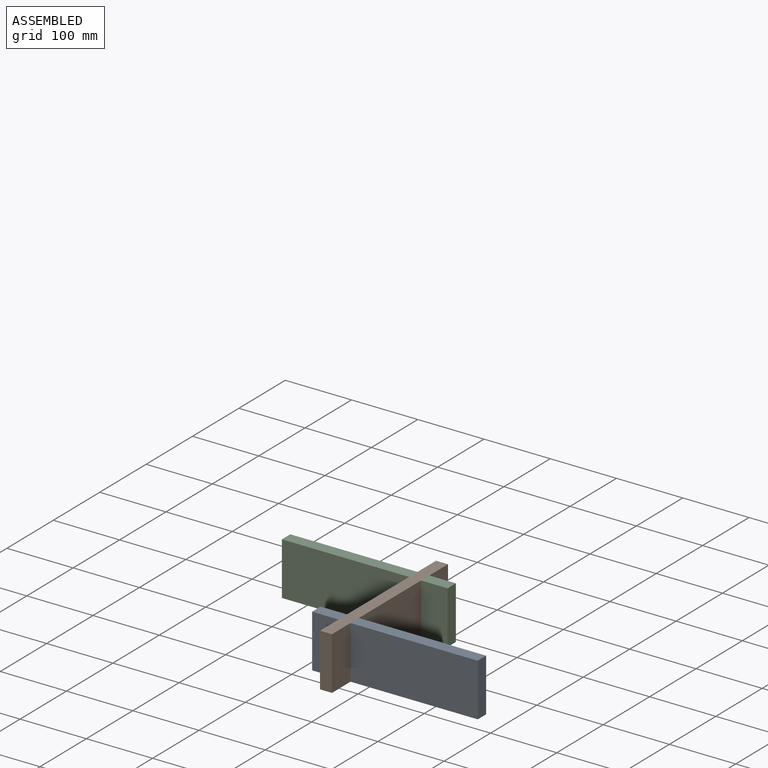
[diagram: assembled view]
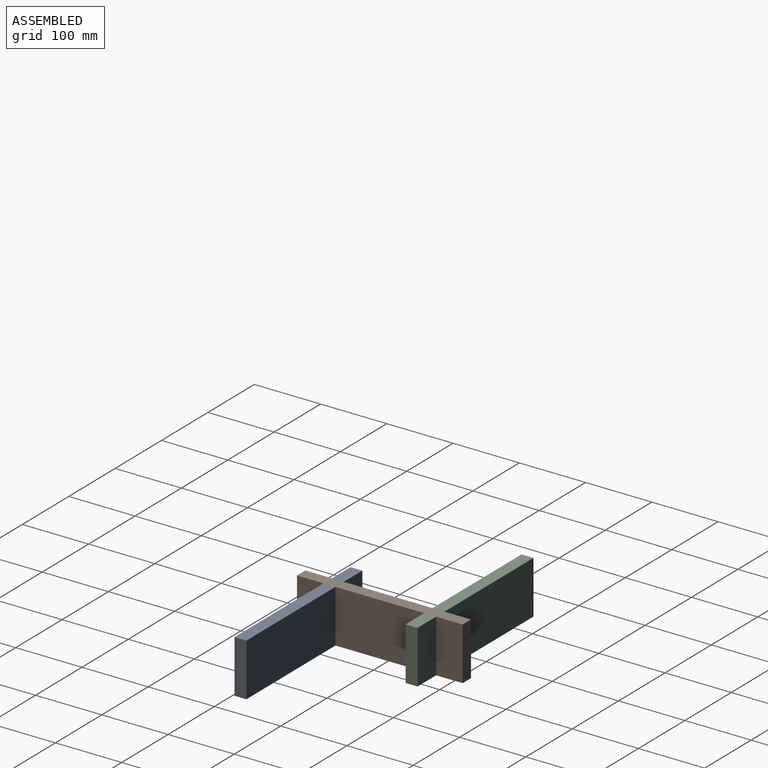
[diagram: assembled view, second angle]
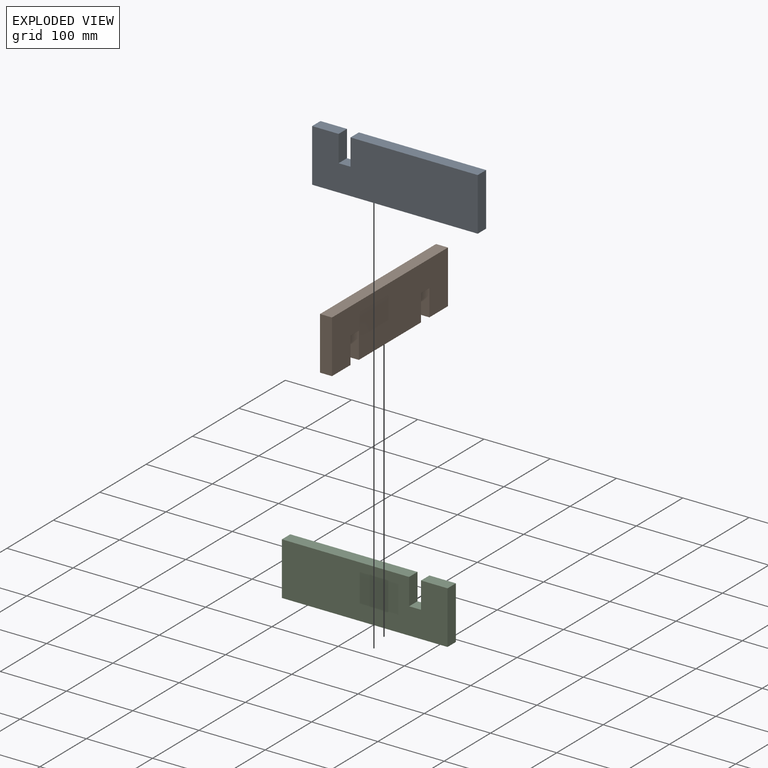
[diagram: exploded view]
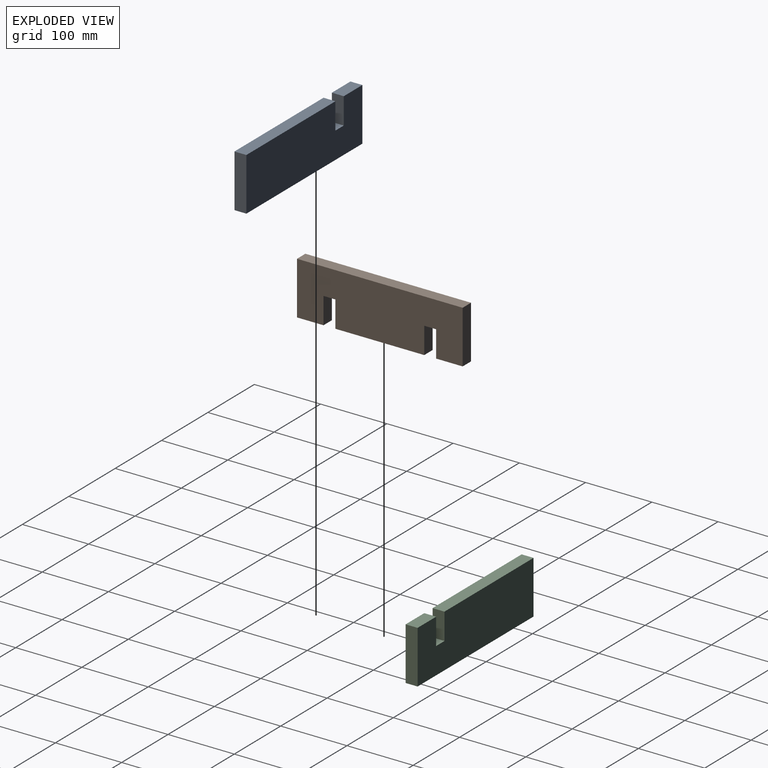
[diagram: exploded view, second angle]
ASSEMBLY  parts=3 mates=2
PART A: 10 faces, bbox 250x18x80 mm
  f0: plane 192x18mm, normal (0,0,1), area 3456mm2, adj f4,f5,f6,f9
  f1: plane 40x18mm, normal (0,0,1), area 720mm2, adj f2,f5,f6,f7
  f2: plane 80x18mm, normal (-1,0,0), area 1440mm2, adj f1,f3,f5,f6
  f3: plane 250x18mm, normal (0,0,-1), area 4500mm2, adj f2,f4,f5,f6
  f4: plane 80x18mm, normal (1,0,0), area 1440mm2, adj f0,f3,f5,f6
  f5: plane 250x80mm, normal (0,-1,0), area 19280mm2, adj f0,f1,f2,f3,f4,f7,f8,f9
  f6: plane 250x80mm, normal (0,1,0), area 19280mm2, adj f0,f1,f2,f3,f4,f7,f8,f9
  f7: plane 40x18mm, normal (1,0,0), area 720mm2, adj f1,f5,f6,f8
  f8: plane 18x18mm, normal (0,0,1), area 324mm2, adj f5,f6,f7,f9
  f9: plane 40x18mm, normal (-1,0,0), area 720mm2, adj f0,f5,f6,f8
PART B: 14 faces, bbox 250x18x80 mm
  f0: plane 134x18mm, normal (0,0,-1), area 2412mm2, adj f2,f3,f8,f12
  f1: plane 40x18mm, normal (0,0,-1), area 720mm2, adj f2,f3,f7,f9
  f2: plane 250x80mm, normal (0,-1,0), area 18560mm2, adj f0,f1,f4,f5,f6,f7,f8,f9
  f3: plane 250x80mm, normal (0,1,0), area 18560mm2, adj f0,f1,f4,f5,f6,f7,f8,f9
  f4: plane 250x18mm, normal (0,0,1), area 4500mm2, adj f2,f3,f5,f7
  f5: plane 80x18mm, normal (-1,0,0), area 1440mm2, adj f2,f3,f4,f6
  f6: plane 40x18mm, normal (0,0,-1), area 720mm2, adj f2,f3,f5,f11
  f7: plane 80x18mm, normal (1,0,0), area 1440mm2, adj f1,f2,f3,f4
  f8: plane 40x18mm, normal (1,0,0), area 720mm2, adj f0,f2,f3,f10
  f9: plane 40x18mm, normal (-1,0,0), area 720mm2, adj f1,f2,f3,f10
  f10: plane 18x18mm, normal (0,0,-1), area 324mm2, adj f2,f3,f8,f9
  f11: plane 40x18mm, normal (1,0,0), area 720mm2, adj f2,f3,f6,f13
  f12: plane 40x18mm, normal (-1,0,0), area 720mm2, adj f0,f2,f3,f13
  f13: plane 18x18mm, normal (0,0,-1), area 324mm2, adj f2,f3,f11,f12
PART C: same geometry as A
PLACE A t=(-27.16,-70.75,-27.85)mm
PLACE B rot(axis=(0,0,-1),90deg) t=(-219.16,-128.75,-27.85)mm
PLACE C rot(axis=(0,0,1),180deg) t=(-429.16,63.25,-27.85)mm
MATE fastened B.f10 <-> A.f8  axis (0,0,-1) through (-228.16,-79.75,12.15)mm
MATE fastened C.f8 <-> B.f13  axis (0,0,1) through (-228.16,72.25,12.15)mm
